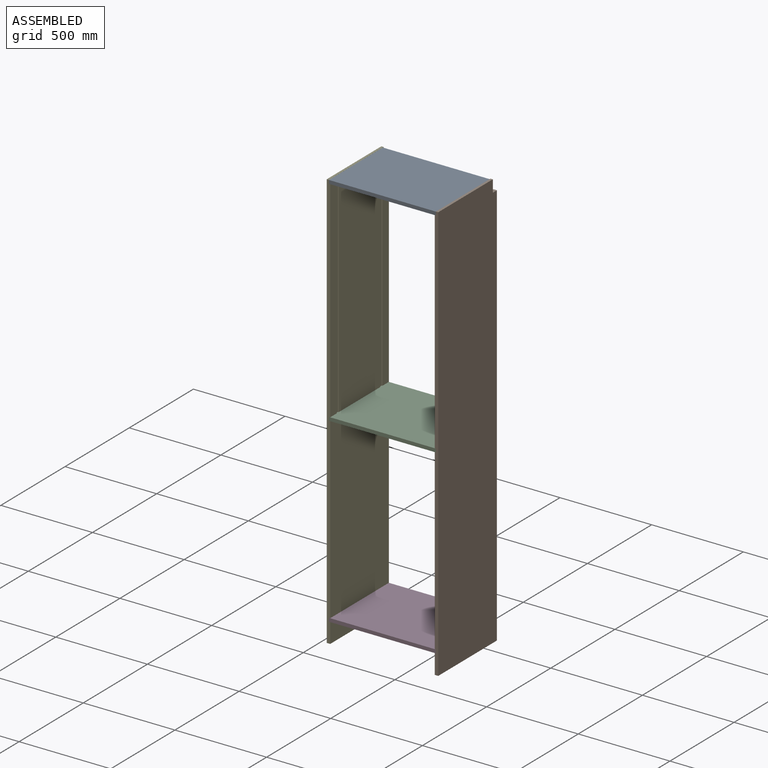
[diagram: assembled view]
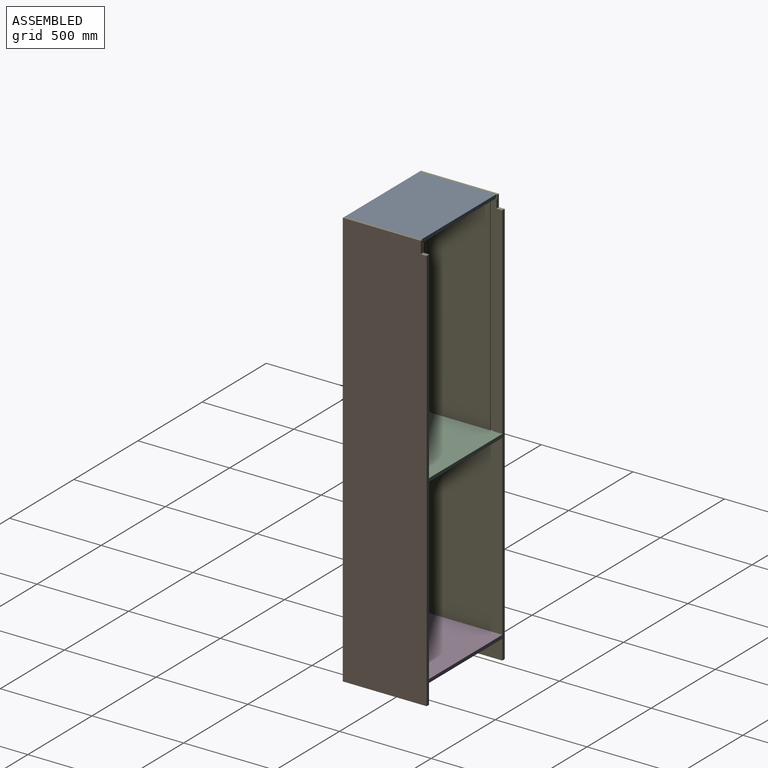
[diagram: assembled view, second angle]
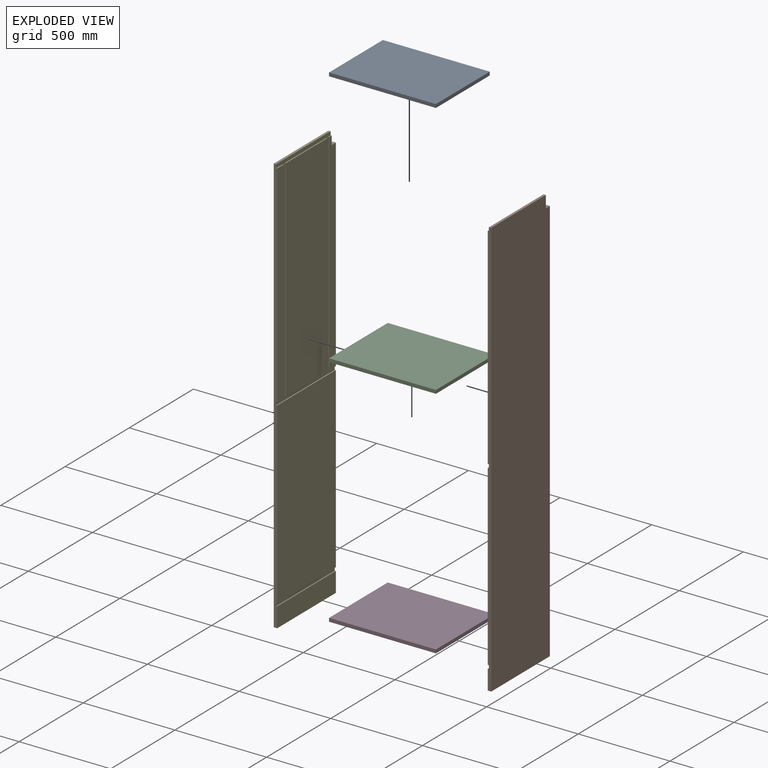
[diagram: exploded view]
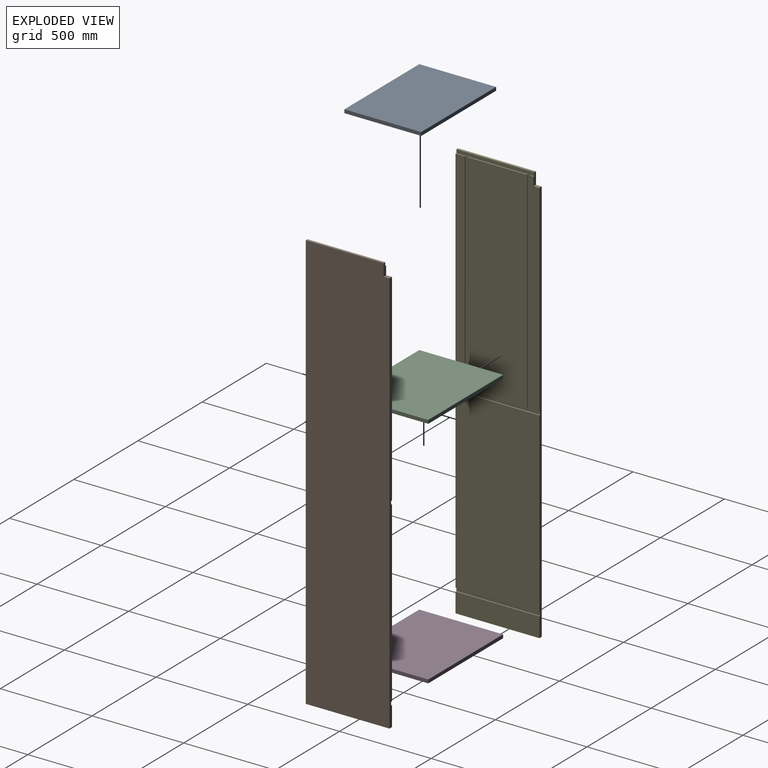
[diagram: exploded view, second angle]
ASSEMBLY  parts=5 mates=12
PART A: 6 faces, bbox 582.9x419.1x19.1 mm
  f0: plane 419.1x19.05mm, normal (-1,0,0), area 7983.9mm2, adj f1,f3,f4,f5
  f1: plane 582.93x19.05mm, normal (0,-1,0), area 11104.8mm2, adj f0,f2,f4,f5
  f2: plane 419.1x19.05mm, normal (1,0,0), area 7983.9mm2, adj f1,f3,f4,f5
  f3: plane 582.93x19.05mm, normal (0,1,0), area 11104.8mm2, adj f0,f2,f4,f5
  f4: plane 582.93x419.1mm, normal (0,0,1), area 244306mm2, adj f0,f1,f2,f3
  f5: plane 582.93x419.1mm, normal (0,0,-1), area 244306mm2, adj f0,f1,f2,f3
PART B: 26 faces, bbox 457.2x19.1x2286 mm
  f0: plane 1149.1x50.8mm, normal (0,-1,0), area 56878.3mm2, adj f2,f3,f9,f12,f13,f23
  f1: plane 1149.1x323.85mm, normal (0,-1,0), area 372134.7mm2, adj f2,f3,f21,f24
  f2: plane 425.2x6.35mm, normal (0,0,1), area 2548.8mm2, adj f0,f1,f6,f11,f13,f14,f20,f21
  f3: plane 457.2x6.35mm, normal (0,0,-1), area 2752mm2, adj f0,f1,f6,f9,f11,f16,f20,f21
  f4: plane 425.2x12.7mm, normal (0,0,1), area 5400mm2, adj f8,f11,f13,f14
  f5: plane 971.3x457.2mm, normal (0,-1,0), area 444076.5mm2, adj f9,f11,f15,f18
  f6: plane 1149.1x50.8mm, normal (0,-1,0), area 58374.1mm2, adj f2,f3,f11,f20
  f7: plane 457.2x107.7mm, normal (0,-1,0), area 49238.6mm2, adj f9,f10,f11,f17
  f8: plane 2286x457.2mm, normal (0,1,0), area 1043045.7mm2, adj f4,f9,f10,f11,f12,f13
  f9: plane 2219.96x19.05mm, normal (-1,0,0), area 42045.1mm2, adj f0,f3,f5,f7,f8,f10,f12,f15
  f10: plane 457.2x19.05mm, normal (0,0,-1), area 8709.7mm2, adj f7,f8,f9,f11
  f11: plane 2286x19.05mm, normal (1,0,0), area 43180.6mm2, adj f2,f3,f4,f5,f6,f7,f8,f10
  f12: plane 32x19.05mm, normal (0,0,1), area 609.7mm2, adj f0,f8,f9,f13
  f13: plane 66.04x19.05mm, normal (-1,0,0), area 1135.5mm2, adj f0,f2,f4,f8,f12,f14
  f14: plane 425.2x19.3mm, normal (0,-1,0), area 8208mm2, adj f2,f4,f11,f13
  f15: plane 457.2x6.35mm, normal (0,0,1), area 2903.2mm2, adj f5,f9,f11,f16
  f16: plane 457.2x19.3mm, normal (0,-1,0), area 8825.8mm2, adj f3,f9,f11,f15
  f17: plane 457.2x6.35mm, normal (0,0,1), area 2903.2mm2, adj f7,f9,f11,f19
  f18: plane 457.2x6.35mm, normal (0,0,-1), area 2903.2mm2, adj f5,f9,f11,f19
  f19: plane 457.2x19.3mm, normal (0,-1,0), area 8825.8mm2, adj f9,f11,f17,f18
  f20: plane 1149.1x4.76mm, normal (-1,0,0), area 5472.6mm2, adj f2,f3,f6,f22
  f21: plane 1149.1x4.76mm, normal (1,0,0), area 5472.6mm2, adj f1,f2,f3,f22
  f22: plane 1149.1x15.88mm, normal (0,-1,0), area 18241.9mm2, adj f2,f3,f20,f21
  f23: plane 1149.1x4.76mm, normal (1,0,0), area 5472.6mm2, adj f0,f2,f3,f25
  f24: plane 1149.1x4.76mm, normal (-1,0,0), area 5472.6mm2, adj f1,f2,f3,f25
  f25: plane 1149.1x15.88mm, normal (0,-1,0), area 18241.9mm2, adj f2,f3,f23,f24
PART C: 6 faces, bbox 582.9x457.2x19.1 mm
  f0: plane 457.2x19.05mm, normal (-1,0,0), area 8709.7mm2, adj f1,f3,f4,f5
  f1: plane 582.93x19.05mm, normal (0,-1,0), area 11104.8mm2, adj f0,f2,f4,f5
  f2: plane 457.2x19.05mm, normal (1,0,0), area 8709.7mm2, adj f1,f3,f4,f5
  f3: plane 582.93x19.05mm, normal (0,1,0), area 11104.8mm2, adj f0,f2,f4,f5
  f4: plane 582.93x457.2mm, normal (0,0,1), area 266515.6mm2, adj f0,f1,f2,f3
  f5: plane 582.93x457.2mm, normal (0,0,-1), area 266515.6mm2, adj f0,f1,f2,f3
PART D: same geometry as C
PART E: 26 faces, bbox 457.2x19.1x2286 mm
  f0: plane 1149.1x50.8mm, normal (0,-1,0), area 58374.1mm2, adj f2,f3,f7,f23
  f1: plane 1149.1x323.85mm, normal (0,-1,0), area 372134.7mm2, adj f2,f3,f21,f24
  f2: plane 425.2x6.35mm, normal (0,0,1), area 2548.8mm2, adj f0,f1,f6,f7,f12,f14,f20,f21
  f3: plane 457.2x6.35mm, normal (0,0,-1), area 2752mm2, adj f0,f1,f6,f7,f9,f16,f20,f21
  f4: plane 425.2x12.7mm, normal (0,0,1), area 5400mm2, adj f7,f11,f12,f14
  f5: plane 971.3x457.2mm, normal (0,-1,0), area 444076.5mm2, adj f7,f9,f15,f18
  f6: plane 1149.1x50.8mm, normal (0,-1,0), area 56878.3mm2, adj f2,f3,f9,f12,f13,f20
  f7: plane 2286x19.05mm, normal (-1,0,0), area 43180.6mm2, adj f0,f2,f3,f4,f5,f8,f10,f11
  f8: plane 457.2x19.05mm, normal (0,0,-1), area 8709.7mm2, adj f7,f9,f10,f11
  f9: plane 2219.96x19.05mm, normal (1,0,0), area 42045.1mm2, adj f3,f5,f6,f8,f10,f11,f13,f15
  f10: plane 457.2x107.7mm, normal (0,-1,0), area 49238.6mm2, adj f7,f8,f9,f17
  f11: plane 2286x457.2mm, normal (0,1,0), area 1043045.7mm2, adj f4,f7,f8,f9,f12,f13
  f12: plane 66.04x19.05mm, normal (1,0,0), area 1135.5mm2, adj f2,f4,f6,f11,f13,f14
  f13: plane 32x19.05mm, normal (0,0,1), area 609.7mm2, adj f6,f9,f11,f12
  f14: plane 425.2x19.3mm, normal (0,-1,0), area 8208mm2, adj f2,f4,f7,f12
  f15: plane 457.2x6.35mm, normal (0,0,1), area 2903.2mm2, adj f5,f7,f9,f16
  f16: plane 457.2x19.3mm, normal (0,-1,0), area 8825.8mm2, adj f3,f7,f9,f15
  f17: plane 457.2x6.35mm, normal (0,0,1), area 2903.2mm2, adj f7,f9,f10,f19
  f18: plane 457.2x6.35mm, normal (0,0,-1), area 2903.2mm2, adj f5,f7,f9,f19
  f19: plane 457.2x19.3mm, normal (0,-1,0), area 8825.8mm2, adj f7,f9,f17,f18
  f20: plane 1149.1x4.76mm, normal (-1,0,0), area 5472.6mm2, adj f2,f3,f6,f22
  f21: plane 1149.1x4.76mm, normal (1,0,0), area 5472.6mm2, adj f1,f2,f3,f22
  f22: plane 1149.1x15.88mm, normal (0,-1,0), area 18241.9mm2, adj f2,f3,f20,f21
  f23: plane 1149.1x4.76mm, normal (1,0,0), area 5472.6mm2, adj f0,f2,f3,f25
  f24: plane 1149.1x4.76mm, normal (-1,0,0), area 5472.6mm2, adj f1,f2,f3,f25
  f25: plane 1149.1x15.88mm, normal (0,-1,0), area 18241.9mm2, adj f2,f3,f23,f24
PLACE A rot(axis=(0.91,-0.39,0.15),0deg) t=(218.87,-611.59,2791.27)mm
PLACE B rot(axis=(0,0,-1),90deg) t=(814.5,-154.39,524.57)mm
PLACE C rot(axis=(0.58,-0.81,0.08),0deg) t=(218.87,-611.59,1622.87)mm
PLACE D t=(218.87,-611.59,632.27)mm
PLACE E rot(axis=(0,0,1),90deg) t=(206.17,-611.59,524.57)mm
MATE planar D.f5 <-> E.f17  axis (0,0,-1) through (510.33,-382.99,632.27)mm
MATE planar A.f5 <-> E.f2  axis (0,0,-1) through (510.33,-402.04,2791.27)mm
MATE planar B.f11 <-> A.f1  axis (0,-1,0) through (805.03,-611.59,1667.37)mm
MATE planar E.f7 <-> A.f1  axis (0,-1,0) through (215.64,-611.59,1667.37)mm
MATE planar D.f0 <-> E.f19  axis (-1,0,0) through (218.87,-382.99,641.79)mm
MATE planar D.f1 <-> B.f11  axis (0,-1,0) through (510.33,-611.59,641.79)mm
MATE planar E.f7 <-> C.f1  axis (0,-1,0) through (215.64,-611.59,1667.37)mm
MATE planar B.f14 <-> A.f2  axis (-1,0,0) through (801.8,-398.99,2800.92)mm
MATE planar C.f2 <-> B.f16  axis (1,0,0) through (801.8,-382.99,1632.39)mm
MATE planar C.f5 <-> E.f15  axis (0,0,-1) through (510.33,-382.99,1622.87)mm
MATE planar A.f0 <-> E.f14  axis (-1,0,0) through (218.87,-611.59,2810.32)mm
MATE planar A.f5 <-> B.f2  axis (0,0,-1) through (801.8,-611.59,2791.27)mm
